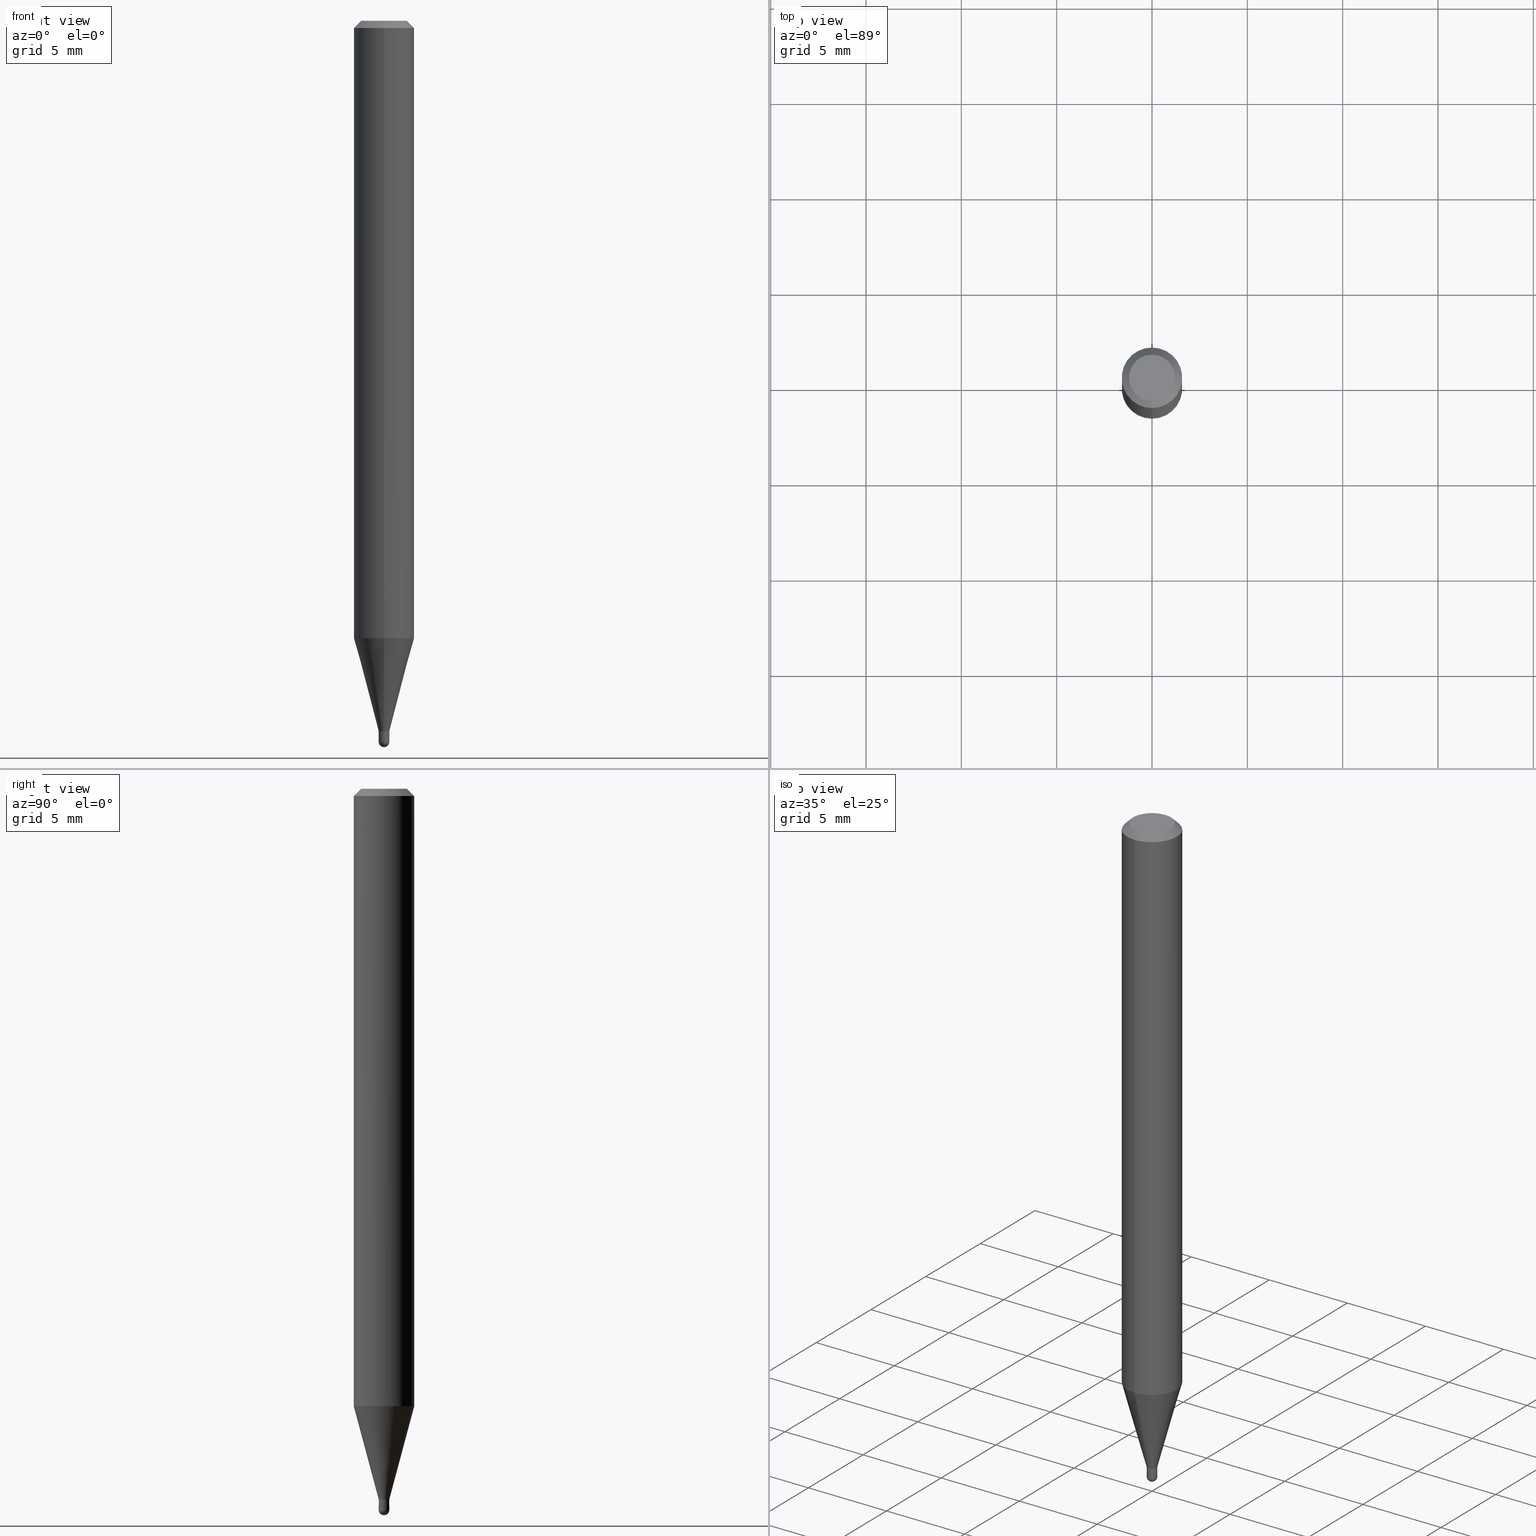
[diagram: canonical four-view strip — front | top / right | iso, engineering-drawing reading convention]
A machine part, canonical four-view strip (front | top / right | iso — engineering-drawing reading convention). The complete STEP part file that produces these views, byte-faithful:
ISO-10303-21;
HEADER;
FILE_DESCRIPTION (( 'STEP AP203' ),
    '1' );
FILE_NAME ('01379.STEP',
    '2024-03-07T20:07:36',
    ( '' ),
    ( '' ),
    'SwSTEP 2.0',
    'SolidWorks 2023',
    '' );
FILE_SCHEMA (( 'CONFIG_CONTROL_DESIGN' ));
ENDSEC;

DATA;
#1 = CONICAL_SURFACE ( 'NONE', #4, 0.06250000000000000000, 0.7853981633974483900 ) ;
#2 = FACE_OUTER_BOUND ( 'NONE', #185, .T. ) ;
#3 = EDGE_CURVE ( 'NONE', #427, #378, #159, .T. ) ;
#4 = AXIS2_PLACEMENT_3D ( 'NONE', #332, #488, #93 ) ;
#5 = ORIENTED_EDGE ( 'NONE', *, *, #351, .T. ) ;
#6 = ORIENTED_EDGE ( 'NONE', *, *, #384, .T. ) ;
#7 = CARTESIAN_POINT ( 'NONE',  ( 2.166525261472997960E-46, -3.093258338036396321E-32, -8.859394581085281817E-18 ) ) ;
#8 = EDGE_CURVE ( 'NONE', #309, #19, #152, .T. ) ;
#9 = VECTOR ( 'NONE', #31, 39.37007874015748143 ) ;
#10 = DIRECTION ( 'NONE',  ( 2.438088387897960049E-29, -3.491481338843145188E-15, -1.000000000000000000 ) ) ;
#11 = ORIENTED_EDGE ( 'NONE', *, *, #350, .T. ) ;
#12 = CARTESIAN_POINT ( 'NONE',  ( 4.364351673553919652E-16, 0.06249999999999995143, -0.01500000000000022669 ) ) ;
#13 = ORIENTED_EDGE ( 'NONE', *, *, #473, .T. ) ;
#14 = EDGE_CURVE ( 'NONE', #257, #260, #78, .T. ) ;
#15 = ORIENTED_EDGE ( 'NONE', *, *, #151, .F. ) ;
#16 = VECTOR ( 'NONE', #316, 39.37007874015748143 ) ;
#17 = CIRCLE ( 'NONE', #299, 0.01099999999999999936 ) ;
#18 = APPROVAL_DATE_TIME ( #382, #372 ) ;
#19 = VERTEX_POINT ( 'NONE', #406 ) ;
#20 = DIRECTION ( 'NONE',  ( -6.982962677686265922E-15, -1.000000000000000000, 3.491500812753583960E-15 ) ) ;
#21 = ORIENTED_EDGE ( 'NONE', *, *, #350, .F. ) ;
#22 =( GEOMETRIC_REPRESENTATION_CONTEXT ( 3 ) GLOBAL_UNCERTAINTY_ASSIGNED_CONTEXT ( ( #61 ) ) GLOBAL_UNIT_ASSIGNED_CONTEXT ( ( #217, #171, #301 ) ) REPRESENTATION_CONTEXT ( 'NONE', 'WORKASPACE' ) );
#23 = CARTESIAN_POINT ( 'NONE',  ( 3.641303052409669428E-29, -5.198815713537445098E-15, -1.489000000000000323 ) ) ;
#24 = VECTOR ( 'NONE', #484, 39.37007874015748854 ) ;
#25 = ORIENTED_EDGE ( 'NONE', *, *, #218, .F. ) ;
#26 = DIRECTION ( 'NONE',  ( -2.445455207626158790E-29, 3.491500812753583960E-15, 1.000000000000000000 ) ) ;
#27 = VERTEX_POINT ( 'NONE', #206 ) ;
#28 = ADVANCED_FACE ( 'NONE', ( #480 ), #313, .T. ) ;
#29 = CARTESIAN_POINT ( 'NONE',  ( 3.840629472727447874E-16, 0.04749999999999999362, -1.747056831868805136E-16 ) ) ;
#30 = CC_DESIGN_PERSON_AND_ORGANIZATION_ASSIGNMENT ( #146, #501, ( #103 ) ) ;
#31 = DIRECTION ( 'NONE',  ( -2.445455207626158790E-29, 3.491500812753583566E-15, 1.000000000000000000 ) ) ;
#32 = APPROVAL ( #76, 'UNSPECIFIED' ) ;
#33 = ORIENTED_EDGE ( 'NONE', *, *, #426, .F. ) ;
#34 = LINE ( 'NONE', #358, #339 ) ;
#35 = CARTESIAN_POINT ( 'NONE',  ( -7.681258945451277835E-17, -0.01100000000000508037, -1.466500000000000359 ) ) ;
#36 = FACE_OUTER_BOUND ( 'NONE', #478, .T. ) ;
#37 = VECTOR ( 'NONE', #242, 39.37007874015748143 ) ;
#38 = EDGE_LOOP ( 'NONE', ( #98, #182 ) ) ;
#39 = CYLINDRICAL_SURFACE ( 'NONE', #97, 0.01099999999999992477 ) ;
#40 = EDGE_CURVE ( 'NONE', #452, #396, #86, .T. ) ;
#41 = DIRECTION ( 'NONE',  ( 2.445455207626158510E-29, -3.491500812753583566E-15, -1.000000000000000000 ) ) ;
#42 = DIRECTION ( 'NONE',  ( -6.982962677686265922E-15, -1.000000000000000000, 3.491500812753583960E-15 ) ) ;
#43 = CARTESIAN_POINT ( 'NONE',  ( 0.01099999999999999936, -7.681258945454891804E-17, 5.363794453375529652E-31 ) ) ;
#44 = ORIENTED_EDGE ( 'NONE', *, *, #3, .F. ) ;
#45 = CARTESIAN_POINT ( 'NONE',  ( 7.815970093364607092E-17, 0.01099999999999476744, -1.466500000000000359 ) ) ;
#46 = CIRCLE ( 'NONE', #429, 0.06250000000000000000 ) ;
#47 = CARTESIAN_POINT ( 'NONE',  ( 3.587482789587575719E-29, -5.122031692309508450E-15, -1.467000000000000304 ) ) ;
#48 = ADVANCED_FACE ( 'NONE', ( #80 ), #463, .T. ) ;
#49 = EDGE_LOOP ( 'NONE', ( #11, #439, #53, #102 ) ) ;
#50 = ORIENTED_EDGE ( 'NONE', *, *, #487, .F. ) ;
#51 = DIRECTION ( 'NONE',  ( 0.000000000000000000, 0.000000000000000000, 1.000000000000000000 ) ) ;
#52 = CARTESIAN_POINT ( 'NONE',  ( 3.587502738673595692E-29, -5.122003124082895786E-15, -1.467000000000000304 ) ) ;
#53 = ORIENTED_EDGE ( 'NONE', *, *, #473, .F. ) ;
#54 = CIRCLE ( 'NONE', #485, 0.04749999999999999362 ) ;
#55 = DIRECTION ( 'NONE',  ( -6.982962677686266711E-15, -1.000000000000000000, 3.491500812753583960E-15 ) ) ;
#56 = AXIS2_PLACEMENT_3D ( 'NONE', #510, #158, #117 ) ;
#57 = ORIENTED_EDGE ( 'NONE', *, *, #72, .T. ) ;
#58 = CC_DESIGN_PERSON_AND_ORGANIZATION_ASSIGNMENT ( #405, #155, ( #436 ) ) ;
#59 = ORIENTED_EDGE ( 'NONE', *, *, #203, .T. ) ;
#60 = LENGTH_MEASURE_WITH_UNIT ( LENGTH_MEASURE( 0.02539999999999999897 ), #294 );
#61 = UNCERTAINTY_MEASURE_WITH_UNIT (LENGTH_MEASURE( 1.000000000000000082E-05 ), #217, 'distance_accuracy_value', 'NONE');
#62 = DIRECTION ( 'NONE',  ( -2.445468806185136597E-29, 3.491481338843145583E-15, 1.000000000000000000 ) ) ;
#63 = DIRECTION ( 'NONE',  ( -2.445455207626158790E-29, 3.491500812753583960E-15, 1.000000000000000000 ) ) ;
#64 = PERSON_AND_ORGANIZATION_ROLE ( 'creator' ) ;
#65 = ORIENTED_EDGE ( 'NONE', *, *, #163, .T. ) ;
#66 = AXIS2_PLACEMENT_3D ( 'NONE', #214, #476, #368 ) ;
#67 = DIRECTION ( 'NONE',  ( -2.445455207626158790E-29, 3.491500812753583566E-15, 1.000000000000000000 ) ) ;
#68 = EDGE_CURVE ( 'NONE', #317, #260, #359, .T. ) ;
#69 = CIRCLE ( 'NONE', #180, 0.01099999999999992477 ) ;
#70 = VERTEX_POINT ( 'NONE', #404 ) ;
#71 = CARTESIAN_POINT ( 'NONE',  ( 3.117464790839112548E-29, -4.450963083274512992E-15, -1.274799383410209153 ) ) ;
#72 = EDGE_CURVE ( 'NONE', #197, #27, #248, .T. ) ;
#73 = DIRECTION ( 'NONE',  ( -2.445455207626158790E-29, 3.491500812753583960E-15, 1.000000000000000000 ) ) ;
#74 = CARTESIAN_POINT ( 'NONE',  ( 3.587482789587576279E-29, -5.122031692309510028E-15, -1.467000000000000526 ) ) ;
#75 = DIRECTION ( 'NONE',  ( -6.982962677686265922E-15, -1.000000000000000000, 0.000000000000000000 ) ) ;
#76 = APPROVAL_STATUS ( 'not_yet_approved' ) ;
#77 = VECTOR ( 'NONE', #278, 39.37007874015748143 ) ;
#78 = LINE ( 'NONE', #470, #16 ) ;
#79 = COORDINATED_UNIVERSAL_TIME_OFFSET ( 5, 0, .BEHIND. ) ;
#80 = FACE_OUTER_BOUND ( 'NONE', #428, .T. ) ;
#81 = DIRECTION ( 'NONE',  ( -2.445455207626158790E-29, 3.491500812753583960E-15, 1.000000000000000000 ) ) ;
#82 = ADVANCED_FACE ( 'NONE', ( #209 ), #120, .F. ) ;
#83 = AXIS2_PLACEMENT_3D ( 'NONE', #466, #441, #227 ) ;
#84 = DIRECTION ( 'NONE',  ( -6.982962677686265922E-15, -1.000000000000000000, 3.491500812753583566E-15 ) ) ;
#85 = CARTESIAN_POINT ( 'NONE',  ( 3.641303052409669428E-29, -5.198815713537445098E-15, -1.489000000000000323 ) ) ;
#86 = CIRCLE ( 'NONE', #293, 0.01100000000000011906 ) ;
#87 = DIRECTION ( 'NONE',  ( -6.982962677686265922E-15, -1.000000000000000000, 3.483106191921935554E-15 ) ) ;
#88 = MANIFOLD_SOLID_BREP ( 'Body-Move/Copy2[1]', #179 ) ;
#89 = ORIENTED_EDGE ( 'NONE', *, *, #14, .T. ) ;
#90 = PERSON_AND_ORGANIZATION ( #256, #291 ) ;
#91 = FACE_OUTER_BOUND ( 'NONE', #338, .T. ) ;
#92 = EDGE_LOOP ( 'NONE', ( #383, #95 ) ) ;
#93 = DIRECTION ( 'NONE',  ( 6.982962677686265922E-15, 1.000000000000000000, -3.483106191921935554E-15 ) ) ;
#94 = AXIS2_PLACEMENT_3D ( 'NONE', #312, #268, #20 ) ;
#95 = ORIENTED_EDGE ( 'NONE', *, *, #178, .F. ) ;
#96 = APPLICATION_CONTEXT ( 'configuration controlled 3d designs of mechanical parts and assemblies' ) ;
#97 = AXIS2_PLACEMENT_3D ( 'NONE', #407, #99, #425 ) ;
#98 = ORIENTED_EDGE ( 'NONE', *, *, #495, .T. ) ;
#99 = DIRECTION ( 'NONE',  ( -2.445455207626158790E-29, 3.491500812753583960E-15, 1.000000000000000000 ) ) ;
#100 = DATE_AND_TIME ( #467, #300 ) ;
#101 = EDGE_CURVE ( 'NONE', #131, #260, #154, .T. ) ;
#102 = ORIENTED_EDGE ( 'NONE', *, *, #8, .F. ) ;
#103 = SECURITY_CLASSIFICATION ( '', '', #141 ) ;
#104 = AXIS2_PLACEMENT_3D ( 'NONE', #468, #401, #226 ) ;
#105 = COORDINATED_UNIVERSAL_TIME_OFFSET ( 5, 0, .BEHIND. ) ;
#106 = ORIENTED_EDGE ( 'NONE', *, *, #210, .T. ) ;
#107 = CIRCLE ( 'NONE', #83, 0.01099999999999999936 ) ;
#108 = ADVANCED_FACE ( 'NONE', ( #2 ), #366, .T. ) ;
#109 = DIRECTION ( 'NONE',  ( 2.445455207626158790E-29, -3.491500812753583960E-15, -1.000000000000000000 ) ) ;
#110 = AXIS2_PLACEMENT_3D ( 'NONE', #344, #235, #167 ) ;
#111 = CARTESIAN_POINT ( 'NONE',  ( 3.587482789587575719E-29, -5.122031692309508450E-15, -1.467000000000000304 ) ) ;
#112 = ORIENTED_EDGE ( 'NONE', *, *, #454, .F. ) ;
#113 = CARTESIAN_POINT ( 'NONE',  ( 3.587482789587575719E-29, -5.122031692309508450E-15, -1.467000000000000304 ) ) ;
#114 = CARTESIAN_POINT ( 'NONE',  ( -7.681258945454840035E-17, -0.01099999999999992477, 3.840650894028915515E-17 ) ) ;
#115 = CARTESIAN_POINT ( 'NONE',  ( 0.000000000000000000, 0.000000000000000000, 0.000000000000000000 ) ) ;
#116 = EDGE_CURVE ( 'NONE', #197, #131, #69, .T. ) ;
#117 = DIRECTION ( 'NONE',  ( -6.982962677686265922E-15, -1.000000000000000000, 0.000000000000000000 ) ) ;
#118 = CC_DESIGN_SECURITY_CLASSIFICATION ( #103, ( #244 ) ) ;
#119 = CLOSED_SHELL ( 'NONE', ( #437, #48, #292, #324, #236, #451, #135, #250, #82, #129, #419, #286 ) ) ;
#120 = PLANE ( 'NONE',  #306 ) ;
#121 = AXIS2_PLACEMENT_3D ( 'NONE', #416, #10, #172 ) ;
#122 = DIRECTION ( 'NONE',  ( -2.445455207626158790E-29, 3.491500812753583960E-15, 1.000000000000000000 ) ) ;
#123 = DIRECTION ( 'NONE',  ( -2.445455207626158790E-29, 3.491500812753583960E-15, 1.000000000000000000 ) ) ;
#124 = CARTESIAN_POINT ( 'NONE',  ( 3.587482789587576279E-29, -5.122031692309510028E-15, -1.467000000000000526 ) ) ;
#125 = DIRECTION ( 'NONE',  ( -2.445455207626158790E-29, 3.491500812753583960E-15, 1.000000000000000000 ) ) ;
#126 = FACE_OUTER_BOUND ( 'NONE', #92, .T. ) ;
#127 = ORIENTED_EDGE ( 'NONE', *, *, #266, .T. ) ;
#128 = EDGE_CURVE ( 'NONE', #427, #396, #421, .T. ) ;
#129 = ADVANCED_FACE ( 'NONE', ( #126 ), #213, .F. ) ;
#130 = CIRCLE ( 'NONE', #453, 0.06250000000000000000 ) ;
#131 = VERTEX_POINT ( 'NONE', #500 ) ;
#132 = DIRECTION ( 'NONE',  ( 1.000000000000000000, -6.982962677686245411E-15, 0.000000000000000000 ) ) ;
#133 = CC_DESIGN_PERSON_AND_ORGANIZATION_ASSIGNMENT ( #90, #340, ( #457 ) ) ;
#134 = DATE_TIME_ROLE ( 'creation_date' ) ;
#135 = ADVANCED_FACE ( 'NONE', ( #387 ), #191, .T. ) ;
#136 = ORIENTED_EDGE ( 'NONE', *, *, #151, .T. ) ;
#137 = CIRCLE ( 'NONE', #104, 0.04749999999999999362 ) ;
#138 = ORIENTED_EDGE ( 'NONE', *, *, #305, .F. ) ;
#139 = CONICAL_SURFACE ( 'NONE', #502, 0.01099999999999992477, 0.2617993877991575125 ) ;
#140 = DIRECTION ( 'NONE',  ( -6.982962677686265922E-15, -1.000000000000000000, 0.000000000000000000 ) ) ;
#141 = SECURITY_CLASSIFICATION_LEVEL ( 'unclassified' ) ;
#142 = VERTEX_POINT ( 'NONE', #29 ) ;
#143 = VECTOR ( 'NONE', #335, 39.37007874015748143 ) ;
#144 = AXIS2_PLACEMENT_3D ( 'NONE', #322, #161, #482 ) ;
#145 = CARTESIAN_POINT ( 'NONE',  ( 3.587482789587576279E-29, -5.122031692309510028E-15, -1.467000000000000526 ) ) ;
#146 = PERSON_AND_ORGANIZATION ( #256, #291 ) ;
#147 = CARTESIAN_POINT ( 'NONE',  ( 3.668182811439240340E-31, -5.237251219130378726E-17, -0.01500000000000000812 ) ) ;
#148 = ADVANCED_BREP_SHAPE_REPRESENTATION ( '01379', ( #88, #276, #320 ), #22 ) ;
#149 = CC_DESIGN_DATE_AND_TIME_ASSIGNMENT ( #100, #262, ( #103 ) ) ;
#150 = EDGE_LOOP ( 'NONE', ( #270, #173, #261, #44, #496 ) ) ;
#151 = EDGE_CURVE ( 'NONE', #197, #317, #433, .T. ) ;
#152 = LINE ( 'NONE', #506, #410 ) ;
#153 = DIRECTION ( 'NONE',  ( 5.024295867788190974E-15, 0.7071067811865681119, 0.7071067811865270336 ) ) ;
#154 = LINE ( 'NONE', #114, #77 ) ;
#155 = PERSON_AND_ORGANIZATION_ROLE ( 'creator' ) ;
#156 = DIRECTION ( 'NONE',  ( -6.982962677686265922E-15, -1.000000000000000000, 0.000000000000000000 ) ) ;
#157 = ORIENTED_EDGE ( 'NONE', *, *, #72, .F. ) ;
#158 = DIRECTION ( 'NONE',  ( 1.000000000000000000, -6.982962677686265922E-15, 4.883557194083112901E-29 ) ) ;
#159 = LINE ( 'NONE', #43, #37 ) ;
#160 = AXIS2_PLACEMENT_3D ( 'NONE', #195, #507, #360 ) ;
#161 = DIRECTION ( 'NONE',  ( 1.000000000000000000, -6.982962677686265922E-15, 4.883557194083112901E-29 ) ) ;
#162 = CIRCLE ( 'NONE', #160, 0.01099999999999992477 ) ;
#163 = EDGE_CURVE ( 'NONE', #131, #197, #347, .T. ) ;
#164 = DIRECTION ( 'NONE',  ( 1.000000000000000000, -6.982962677686245411E-15, 0.000000000000000000 ) ) ;
#165 = EDGE_CURVE ( 'NONE', #289, #427, #17, .T. ) ;
#166 = ORIENTED_EDGE ( 'NONE', *, *, #487, .T. ) ;
#167 = DIRECTION ( 'NONE',  ( 1.000000000000000000, -6.982962677686245411E-15, 0.000000000000000000 ) ) ;
#168 = AXIS2_PLACEMENT_3D ( 'NONE', #115, #281, #361 ) ;
#169 = ORIENTED_EDGE ( 'NONE', *, *, #116, .T. ) ;
#170 = AXIS2_PLACEMENT_3D ( 'NONE', #147, #109, #440 ) ;
#171 =( NAMED_UNIT ( * ) PLANE_ANGLE_UNIT ( ) SI_UNIT ( $, .RADIAN. ) );
#172 = DIRECTION ( 'NONE',  ( -1.000000000000000000, 6.982962677686265922E-15, -4.876176775795935793E-29 ) ) ;
#173 = ORIENTED_EDGE ( 'NONE', *, *, #426, .T. ) ;
#174 = APPLICATION_CONTEXT ( 'configuration controlled 3d designs of mechanical parts and assemblies' ) ;
#175 = ORIENTED_EDGE ( 'NONE', *, *, #352, .T. ) ;
#176 = CALENDAR_DATE ( 2024, 7, 3 ) ;
#177 = CONICAL_SURFACE ( 'NONE', #337, 0.01099999999999992477, 0.2617993877991575125 ) ;
#178 = EDGE_CURVE ( 'NONE', #395, #257, #388, .T. ) ;
#179 = CLOSED_SHELL ( 'NONE', ( #192, #108, #412, #370, #28 ) ) ;
#180 = AXIS2_PLACEMENT_3D ( 'NONE', #124, #408, #251 ) ;
#181 = PERSON_AND_ORGANIZATION ( #256, #291 ) ;
#182 = ORIENTED_EDGE ( 'NONE', *, *, #241, .T. ) ;
#183 = PRODUCT_RELATED_PRODUCT_CATEGORY ( 'detail', '', ( #457 ) ) ;
#184 = PERSON_AND_ORGANIZATION ( #256, #291 ) ;
#185 = EDGE_LOOP ( 'NONE', ( #295, #423, #271, #385 ) ) ;
#186 = CARTESIAN_POINT ( 'NONE',  ( -7.332110811566990680E-17, -0.01050000000000512156, -1.467000000000000304 ) ) ;
#187 = CARTESIAN_POINT ( 'NONE',  ( 0.000000000000000000, 0.000000000000000000, 0.000000000000000000 ) ) ;
#188 = EDGE_LOOP ( 'NONE', ( #33, #175, #455, #459, #231 ) ) ;
#189 = AXIS2_PLACEMENT_3D ( 'NONE', #474, #81, #75 ) ;
#190 = AXIS2_PLACEMENT_3D ( 'NONE', #323, #381, #84 ) ;
#191 = CYLINDRICAL_SURFACE ( 'NONE', #94, 0.06250000000000000000 ) ;
#192 = ADVANCED_FACE ( 'NONE', ( #393 ), #465, .T. ) ;
#193 = ORIENTED_EDGE ( 'NONE', *, *, #241, .F. ) ;
#194 = APPLICATION_PROTOCOL_DEFINITION ( 'international standard', 'config_control_design', 1994, #174 ) ;
#195 = CARTESIAN_POINT ( 'NONE',  ( 3.586260061983762993E-29, -5.120285941903131828E-15, -1.466500000000000359 ) ) ;
#196 = CARTESIAN_POINT ( 'NONE',  ( 0.01099999999999999936, -5.237222008264718177E-15, -1.489000000000000323 ) ) ;
#197 = VERTEX_POINT ( 'NONE', #443 ) ;
#198 = EDGE_LOOP ( 'NONE', ( #112, #59, #415, #138 ) ) ;
#199 = CARTESIAN_POINT ( 'NONE',  ( 4.440892098500625669E-16, 0.06250000000000000000, -2.182188007970989975E-16 ) ) ;
#200 = FACE_OUTER_BOUND ( 'NONE', #223, .T. ) ;
#201 = CARTESIAN_POINT ( 'NONE',  ( 7.815970093364634209E-17, 0.01099999999999480213, -1.467000000000000526 ) ) ;
#202 = CALENDAR_DATE ( 2024, 7, 3 ) ;
#203 = EDGE_CURVE ( 'NONE', #27, #309, #328, .T. ) ;
#204 = DIRECTION ( 'NONE',  ( 1.000000000000000000, -6.982962677686265922E-15, 4.876176775795936353E-29 ) ) ;
#205 = CIRCLE ( 'NONE', #110, 0.01099999999999999936 ) ;
#206 = CARTESIAN_POINT ( 'NONE',  ( 4.440892098500935790E-16, 0.06249999999999553135, -1.274799383410209597 ) ) ;
#207 = FACE_OUTER_BOUND ( 'NONE', #237, .T. ) ;
#208 = LINE ( 'NONE', #199, #9 ) ;
#209 = FACE_OUTER_BOUND ( 'NONE', #38, .T. ) ;
#210 = EDGE_CURVE ( 'NONE', #260, #317, #162, .T. ) ;
#211 = DIRECTION ( 'NONE',  ( 6.982962677686265922E-15, 1.000000000000000000, -3.491500812753583566E-15 ) ) ;
#212 = AXIS2_PLACEMENT_3D ( 'NONE', #319, #122, #42 ) ;
#213 = PLANE ( 'NONE',  #190 ) ;
#214 = CARTESIAN_POINT ( 'NONE',  ( 3.641303052409669428E-29, -5.198815713537445098E-15, -1.489000000000000323 ) ) ;
#215 = ORIENTED_EDGE ( 'NONE', *, *, #14, .F. ) ;
#216 = DIMENSIONAL_EXPONENTS ( 1.000000000000000000, 0.000000000000000000, 0.000000000000000000, 0.000000000000000000, 0.000000000000000000, 0.000000000000000000, 0.000000000000000000 ) ;
#217 =( CONVERSION_BASED_UNIT ( 'INCH', #60 ) LENGTH_UNIT ( ) NAMED_UNIT ( #216 ) );
#218 = EDGE_CURVE ( 'NONE', #395, #317, #273, .T. ) ;
#219 = DIRECTION ( 'NONE',  ( -2.445468806185136597E-29, 3.491481338843145583E-15, 1.000000000000000000 ) ) ;
#220 = LOCAL_TIME ( 15, 7, 36.00000000000000000, #105 ) ;
#221 = ORIENTED_EDGE ( 'NONE', *, *, #68, .F. ) ;
#222 = AXIS2_PLACEMENT_3D ( 'NONE', #113, #394, #156 ) ;
#223 = EDGE_LOOP ( 'NONE', ( #157, #169, #330, #238 ) ) ;
#224 = ORIENTED_EDGE ( 'NONE', *, *, #116, .F. ) ;
#225 = APPROVAL_STATUS ( 'not_yet_approved' ) ;
#226 = DIRECTION ( 'NONE',  ( -6.982962677686266711E-15, -1.000000000000000000, 3.491500812753583960E-15 ) ) ;
#227 = DIRECTION ( 'NONE',  ( 1.000000000000000000, -6.982962677686245411E-15, 0.000000000000000000 ) ) ;
#228 = ORIENTED_EDGE ( 'NONE', *, *, #218, .T. ) ;
#229 = DIRECTION ( 'NONE',  ( -6.982962677686265922E-15, -1.000000000000000000, 0.000000000000000000 ) ) ;
#230 = PERSON_AND_ORGANIZATION ( #256, #291 ) ;
#231 = ORIENTED_EDGE ( 'NONE', *, *, #432, .F. ) ;
#232 = AXIS2_PLACEMENT_3D ( 'NONE', #47, #123, #287 ) ;
#233 = CONICAL_SURFACE ( 'NONE', #170, 0.06250000000000000000, 0.7853981633974483900 ) ;
#234 = DIRECTION ( 'NONE',  ( -2.445455207626158790E-29, 3.491500812753583960E-15, 1.000000000000000000 ) ) ;
#235 = DIRECTION ( 'NONE',  ( -2.445468806185136597E-29, 3.491481338843145583E-15, 1.000000000000000000 ) ) ;
#236 = ADVANCED_FACE ( 'NONE', ( #430 ), #139, .T. ) ;
#237 = EDGE_LOOP ( 'NONE', ( #252, #127, #357, #255 ) ) ;
#238 = ORIENTED_EDGE ( 'NONE', *, *, #203, .F. ) ;
#239 = DIRECTION ( 'NONE',  ( -6.982962677686265922E-15, -1.000000000000000000, 0.000000000000000000 ) ) ;
#240 = CARTESIAN_POINT ( 'NONE',  ( 3.587482789587576279E-29, -5.122031692309510028E-15, -1.467000000000000526 ) ) ;
#241 = EDGE_CURVE ( 'NONE', #414, #142, #137, .T. ) ;
#242 = DIRECTION ( 'NONE',  ( -2.445468806185136877E-29, 3.491481338843145188E-15, 1.000000000000000000 ) ) ;
#243 = CALENDAR_DATE ( 2024, 7, 3 ) ;
#244 = PRODUCT_DEFINITION_FORMATION_WITH_SPECIFIED_SOURCE ( 'ANY', '', #457, .NOT_KNOWN. ) ;
#245 = AXIS2_PLACEMENT_3D ( 'NONE', #111, #73, #239 ) ;
#246 = AXIS2_PLACEMENT_3D ( 'NONE', #462, #304, #310 ) ;
#247 = CARTESIAN_POINT ( 'NONE',  ( 3.640362369491571484E-29, -5.200162825016506087E-15, -1.489000000000000101 ) ) ;
#248 = LINE ( 'NONE', #201, #420 ) ;
#249 = CC_DESIGN_PERSON_AND_ORGANIZATION_ASSIGNMENT ( #230, #390, ( #244 ) ) ;
#250 = ADVANCED_FACE ( 'NONE', ( #503 ), #233, .T. ) ;
#251 = DIRECTION ( 'NONE',  ( -6.982962677686265922E-15, -1.000000000000000000, 0.000000000000000000 ) ) ;
#252 = ORIENTED_EDGE ( 'NONE', *, *, #40, .F. ) ;
#253 = CARTESIAN_POINT ( 'NONE',  ( 3.668182811439240340E-31, -5.237251219130378726E-17, -0.01500000000000000812 ) ) ;
#254 = AXIS2_PLACEMENT_3D ( 'NONE', #74, #472, #140 ) ;
#255 = ORIENTED_EDGE ( 'NONE', *, *, #342, .F. ) ;
#256 = PERSON ( 'UNSPECIFIED', 'UNSPECIFIED', 'UNSPECIFIED', ('UNSPECIFIED'), ('UNSPECIFIED'), ('UNSPECIFIED') ) ;
#257 = VERTEX_POINT ( 'NONE', #186 ) ;
#258 = CARTESIAN_POINT ( 'NONE',  ( 0.000000000000000000, 0.000000000000000000, 0.000000000000000000 ) ) ;
#259 = PLANE ( 'NONE',  #121 ) ;
#260 = VERTEX_POINT ( 'NONE', #35 ) ;
#261 = ORIENTED_EDGE ( 'NONE', *, *, #384, .F. ) ;
#262 = DATE_TIME_ROLE ( 'classification_date' ) ;
#263 = APPROVAL_PERSON_ORGANIZATION ( #181, #461, #269 ) ;
#264 = DIRECTION ( 'NONE',  ( 1.000000000000000000, -6.982962677686245411E-15, 0.000000000000000000 ) ) ;
#265 = CALENDAR_DATE ( 2024, 7, 3 ) ;
#266 = EDGE_CURVE ( 'NONE', #452, #289, #464, .T. ) ;
#267 = CARTESIAN_POINT ( 'NONE',  ( -7.681258945451251950E-17, -0.01100000000000504567, -1.467000000000000526 ) ) ;
#268 = DIRECTION ( 'NONE',  ( -2.445455207626158790E-29, 3.491500812753583960E-15, 1.000000000000000000 ) ) ;
#269 = APPROVAL_ROLE ( '' ) ;
#270 = ORIENTED_EDGE ( 'NONE', *, *, #342, .T. ) ;
#271 = ORIENTED_EDGE ( 'NONE', *, *, #128, .F. ) ;
#272 = CIRCLE ( 'NONE', #66, 0.01099999999999999936 ) ;
#273 = LINE ( 'NONE', #505, #481 ) ;
#274 = DESIGN_CONTEXT ( 'detailed design', #174, 'design' ) ;
#275 = DIRECTION ( 'NONE',  ( -2.445468806185136597E-29, 3.491481338843145583E-15, 1.000000000000000000 ) ) ;
#276 = MANIFOLD_SOLID_BREP ( 'Body-Move/Copy2[2]', #119 ) ;
#277 = CC_DESIGN_PERSON_AND_ORGANIZATION_ASSIGNMENT ( #434, #64, ( #244 ) ) ;
#278 = DIRECTION ( 'NONE',  ( -2.445455207626158790E-29, 3.491500812753583566E-15, 1.000000000000000000 ) ) ;
#279 = DIRECTION ( 'NONE',  ( -4.851104656540964275E-15, -0.7071067811865500152, -0.7071067811865450192 ) ) ;
#280 = CARTESIAN_POINT ( 'NONE',  ( 3.117464790839112548E-29, -4.450963083274512992E-15, -1.274799383410209153 ) ) ;
#281 = DIRECTION ( 'NONE',  ( -2.445468806185136597E-29, 3.491481338843145583E-15, 1.000000000000000000 ) ) ;
#282 = CARTESIAN_POINT ( 'NONE',  ( -4.364351673553605094E-16, -0.06250000000000444089, -1.274799383410208931 ) ) ;
#283 = APPROVAL_PERSON_ORGANIZATION ( #184, #372, #438 ) ;
#284 = AXIS2_PLACEMENT_3D ( 'NONE', #397, #62, #204 ) ;
#285 = PERSON_AND_ORGANIZATION ( #256, #291 ) ;
#286 = ADVANCED_FACE ( 'NONE', ( #479 ), #39, .F. ) ;
#287 = DIRECTION ( 'NONE',  ( -6.982962677686265922E-15, -1.000000000000000000, 0.000000000000000000 ) ) ;
#288 = EDGE_LOOP ( 'NONE', ( #417, #303, #166, #504 ) ) ;
#289 = VERTEX_POINT ( 'NONE', #460 ) ;
#290 = DIRECTION ( 'NONE',  ( -2.445455207626158790E-29, 3.491500812753583960E-15, 1.000000000000000000 ) ) ;
#291 = ORGANIZATION ( 'UNSPECIFIED', 'UNSPECIFIED', '' ) ;
#292 = ADVANCED_FACE ( 'NONE', ( #327 ), #1, .T. ) ;
#293 = AXIS2_PLACEMENT_3D ( 'NONE', #247, #450, #449 ) ;
#294 =( LENGTH_UNIT ( ) NAMED_UNIT ( * ) SI_UNIT ( $, .METRE. ) );
#295 = ORIENTED_EDGE ( 'NONE', *, *, #266, .F. ) ;
#296 = CARTESIAN_POINT ( 'NONE',  ( 7.638334409424636122E-17, 0.01049999999999487801, -1.467000000000000304 ) ) ;
#297 = ORIENTED_EDGE ( 'NONE', *, *, #363, .T. ) ;
#298 = EDGE_CURVE ( 'NONE', #131, #309, #386, .T. ) ;
#299 = AXIS2_PLACEMENT_3D ( 'NONE', #23, #275, #264 ) ;
#300 = LOCAL_TIME ( 15, 7, 36.00000000000000000, #349 ) ;
#301 =( NAMED_UNIT ( * ) SI_UNIT ( $, .STERADIAN. ) SOLID_ANGLE_UNIT ( ) );
#302 = ORIENTED_EDGE ( 'NONE', *, *, #298, .F. ) ;
#303 = ORIENTED_EDGE ( 'NONE', *, *, #495, .F. ) ;
#304 = DIRECTION ( 'NONE',  ( -1.000000000000000000, 6.982962677686265922E-15, -4.883557194083112340E-29 ) ) ;
#305 = EDGE_CURVE ( 'NONE', #70, #19, #458, .T. ) ;
#306 = AXIS2_PLACEMENT_3D ( 'NONE', #364, #41, #211 ) ;
#307 = AXIS2_PLACEMENT_3D ( 'NONE', #52, #219, #132 ) ;
#308 = DIRECTION ( 'NONE',  ( -6.982962677686265922E-15, -1.000000000000000000, 0.000000000000000000 ) ) ;
#309 = VERTEX_POINT ( 'NONE', #282 ) ;
#310 = DIRECTION ( 'NONE',  ( -6.982962677686265922E-15, -1.000000000000000000, 0.000000000000000000 ) ) ;
#311 = LINE ( 'NONE', #402, #456 ) ;
#312 = CARTESIAN_POINT ( 'NONE',  ( 0.000000000000000000, 0.000000000000000000, 0.000000000000000000 ) ) ;
#313 = CYLINDRICAL_SURFACE ( 'NONE', #168, 0.01099999999999999936 ) ;
#314 = CARTESIAN_POINT ( 'NONE',  ( 3.587482789587575719E-29, -5.122031692309508450E-15, -1.467000000000000304 ) ) ;
#315 = DATE_AND_TIME ( #202, #491 ) ;
#316 = DIRECTION ( 'NONE',  ( -4.937700262164674260E-15, -0.7071067811865632269, 0.7071067811865319186 ) ) ;
#317 = VERTEX_POINT ( 'NONE', #45 ) ;
#318 = AXIS2_PLACEMENT_3D ( 'NONE', #85, #483, #164 ) ;
#319 = CARTESIAN_POINT ( 'NONE',  ( 0.000000000000000000, 0.000000000000000000, 0.000000000000000000 ) ) ;
#320 = AXIS2_PLACEMENT_3D ( 'NONE', #258, #51, #331 ) ;
#321 = AXIS2_PLACEMENT_3D ( 'NONE', #253, #447, #400 ) ;
#322 = CARTESIAN_POINT ( 'NONE',  ( 3.640362369491571484E-29, -5.200162825016506087E-15, -1.489000000000000101 ) ) ;
#323 = CARTESIAN_POINT ( 'NONE',  ( 3.587482789587575719E-29, -5.122031692309508450E-15, -1.467000000000000304 ) ) ;
#324 = ADVANCED_FACE ( 'NONE', ( #409 ), #512, .T. ) ;
#325 = DATE_AND_TIME ( #243, #490 ) ;
#326 = ORIENTED_EDGE ( 'NONE', *, *, #432, .T. ) ;
#327 = FACE_OUTER_BOUND ( 'NONE', #334, .T. ) ;
#328 = CIRCLE ( 'NONE', #369, 0.06250000000000000000 ) ;
#329 = SHAPE_DEFINITION_REPRESENTATION ( #341, #148 ) ;
#330 = ORIENTED_EDGE ( 'NONE', *, *, #298, .T. ) ;
#331 = DIRECTION ( 'NONE',  ( 1.000000000000000000, 0.000000000000000000, 0.000000000000000000 ) ) ;
#332 = CARTESIAN_POINT ( 'NONE',  ( 3.668182811439240340E-31, -5.237251219130378726E-17, -0.01500000000000000812 ) ) ;
#333 = CARTESIAN_POINT ( 'NONE',  ( -3.773273898774340269E-16, -0.04749999999999999362, 1.569868940247099438E-16 ) ) ;
#334 = EDGE_LOOP ( 'NONE', ( #193, #5, #13, #50 ) ) ;
#335 = DIRECTION ( 'NONE',  ( 4.937700262164548042E-15, 0.7071067811865451302, -0.7071067811865499042 ) ) ;
#336 = CC_DESIGN_DATE_AND_TIME_ASSIGNMENT ( #325, #134, ( #436 ) ) ;
#337 = AXIS2_PLACEMENT_3D ( 'NONE', #145, #125, #413 ) ;
#338 = EDGE_LOOP ( 'NONE', ( #6, #326 ) ) ;
#339 = VECTOR ( 'NONE', #279, 39.37007874015748143 ) ;
#340 = PERSON_AND_ORGANIZATION_ROLE ( 'design_owner' ) ;
#341 = PRODUCT_DEFINITION_SHAPE ( 'NONE', 'NONE',  #436 ) ;
#342 = EDGE_CURVE ( 'NONE', #396, #374, #272, .T. ) ;
#343 = APPROVAL_STATUS ( 'not_yet_approved' ) ;
#344 = CARTESIAN_POINT ( 'NONE',  ( 3.641303052409669428E-29, -5.198815713537445098E-15, -1.489000000000000323 ) ) ;
#345 = DIRECTION ( 'NONE',  ( -2.445455207626158790E-29, 3.491500812753583960E-15, 1.000000000000000000 ) ) ;
#346 = LOCAL_TIME ( 15, 7, 36.00000000000000000, #497 ) ;
#347 = CIRCLE ( 'NONE', #254, 0.01099999999999992477 ) ;
#348 = CARTESIAN_POINT ( 'NONE',  ( 7.815970093361046124E-17, 0.01099999999999992477, -3.840650894028915515E-17 ) ) ;
#349 = COORDINATED_UNIVERSAL_TIME_OFFSET ( 5, 0, .BEHIND. ) ;
#350 = EDGE_CURVE ( 'NONE', #309, #27, #46, .T. ) ;
#351 = EDGE_CURVE ( 'NONE', #414, #19, #34, .T. ) ;
#352 = EDGE_CURVE ( 'NONE', #374, #289, #205, .T. ) ;
#353 = DIRECTION ( 'NONE',  ( -6.982962677686265922E-15, -1.000000000000000000, 4.370956789862821150E-15 ) ) ;
#354 = FACE_OUTER_BOUND ( 'NONE', #422, .T. ) ;
#355 = APPROVAL_DATE_TIME ( #315, #32 ) ;
#356 = CC_DESIGN_APPROVAL ( #372, ( #103 ) ) ;
#357 = ORIENTED_EDGE ( 'NONE', *, *, #352, .F. ) ;
#358 = CARTESIAN_POINT ( 'NONE',  ( -4.287811248607203282E-16, -0.06250000000000005551, -0.01499999999999979128 ) ) ;
#359 = CIRCLE ( 'NONE', #189, 0.01099999999999992477 ) ;
#360 = DIRECTION ( 'NONE',  ( -6.982962677686265922E-15, -1.000000000000000000, 0.000000000000000000 ) ) ;
#361 = DIRECTION ( 'NONE',  ( 1.000000000000000000, -6.982962677686265922E-15, 4.876176775795936353E-29 ) ) ;
#362 = SPHERICAL_SURFACE ( 'NONE', #56, 0.01100000000000011906 ) ;
#363 = EDGE_CURVE ( 'NONE', #257, #395, #367, .T. ) ;
#364 = CARTESIAN_POINT ( 'NONE',  ( 3.316907271900976096E-16, 0.04749999999999999362, -1.702759858963378650E-16 ) ) ;
#365 = CARTESIAN_POINT ( 'NONE',  ( 3.666792184900559380E-29, -5.239242675483312815E-15, -1.500000000000000444 ) ) ;
#366 = SPHERICAL_SURFACE ( 'NONE', #144, 0.01100000000000011906 ) ;
#367 = CIRCLE ( 'NONE', #232, 0.01049999999999999892 ) ;
#368 = DIRECTION ( 'NONE',  ( 1.000000000000000000, -6.982962677686245411E-15, 0.000000000000000000 ) ) ;
#369 = AXIS2_PLACEMENT_3D ( 'NONE', #71, #26, #353 ) ;
#370 = ADVANCED_FACE ( 'NONE', ( #207 ), #362, .T. ) ;
#371 = DIRECTION ( 'NONE',  ( -6.982962677686265922E-15, -1.000000000000000000, 4.370956789862821150E-15 ) ) ;
#372 = APPROVAL ( #343, 'UNSPECIFIED' ) ;
#373 = ORIENTED_EDGE ( 'NONE', *, *, #178, .T. ) ;
#374 = VERTEX_POINT ( 'NONE', #486 ) ;
#375 = CARTESIAN_POINT ( 'NONE',  ( 7.815970093364783353E-17, 0.01099999999999485938, -1.489000000000000323 ) ) ;
#376 = AXIS2_PLACEMENT_3D ( 'NONE', #187, #345, #398 ) ;
#377 = CARTESIAN_POINT ( 'NONE',  ( 3.668182811439240340E-31, -5.237251219130378726E-17, -0.01500000000000000812 ) ) ;
#378 = VERTEX_POINT ( 'NONE', #448 ) ;
#379 = ORIENTED_EDGE ( 'NONE', *, *, #101, .F. ) ;
#380 = APPLICATION_PROTOCOL_DEFINITION ( 'international standard', 'config_control_design', 1994, #96 ) ;
#381 = DIRECTION ( 'NONE',  ( -2.445455207626158510E-29, 3.491500812753583566E-15, 1.000000000000000000 ) ) ;
#382 = DATE_AND_TIME ( #176, #346 ) ;
#383 = ORIENTED_EDGE ( 'NONE', *, *, #363, .F. ) ;
#384 = EDGE_CURVE ( 'NONE', #378, #391, #411, .T. ) ;
#385 = ORIENTED_EDGE ( 'NONE', *, *, #165, .F. ) ;
#386 = LINE ( 'NONE', #267, #24 ) ;
#387 = FACE_OUTER_BOUND ( 'NONE', #198, .T. ) ;
#388 = CIRCLE ( 'NONE', #392, 0.01049999999999999892 ) ;
#389 = DIRECTION ( 'NONE',  ( -2.445468806185136877E-29, 3.491481338843145188E-15, 1.000000000000000000 ) ) ;
#390 = PERSON_AND_ORGANIZATION_ROLE ( 'design_supplier' ) ;
#391 = VERTEX_POINT ( 'NONE', #489 ) ;
#392 = AXIS2_PLACEMENT_3D ( 'NONE', #314, #234, #308 ) ;
#393 = FACE_OUTER_BOUND ( 'NONE', #150, .T. ) ;
#394 = DIRECTION ( 'NONE',  ( -2.445455207626158790E-29, 3.491500812753583960E-15, 1.000000000000000000 ) ) ;
#395 = VERTEX_POINT ( 'NONE', #296 ) ;
#396 = VERTEX_POINT ( 'NONE', #375 ) ;
#397 = CARTESIAN_POINT ( 'NONE',  ( 0.000000000000000000, 0.000000000000000000, 0.000000000000000000 ) ) ;
#398 = DIRECTION ( 'NONE',  ( -6.982962677686265922E-15, -1.000000000000000000, 3.491500812753583566E-15 ) ) ;
#399 = APPROVAL_ROLE ( '' ) ;
#400 = DIRECTION ( 'NONE',  ( -6.982962677686265922E-15, -1.000000000000000000, 3.483106191921935554E-15 ) ) ;
#401 = DIRECTION ( 'NONE',  ( -2.445455207626158790E-29, 3.491500812753583960E-15, 1.000000000000000000 ) ) ;
#402 = CARTESIAN_POINT ( 'NONE',  ( -0.01099999999999999936, 7.815970093361101591E-17, -5.410828599280396199E-31 ) ) ;
#403 = ORIENTED_EDGE ( 'NONE', *, *, #210, .F. ) ;
#404 = CARTESIAN_POINT ( 'NONE',  ( 4.440892098500939734E-16, 0.06249999999999995143, -0.01500000000000022669 ) ) ;
#405 = PERSON_AND_ORGANIZATION ( #256, #291 ) ;
#406 = CARTESIAN_POINT ( 'NONE',  ( -4.364351673553912750E-16, -0.06250000000000005551, -0.01499999999999979128 ) ) ;
#407 = CARTESIAN_POINT ( 'NONE',  ( 0.000000000000000000, 0.000000000000000000, 0.000000000000000000 ) ) ;
#408 = DIRECTION ( 'NONE',  ( -2.445455207626158790E-29, 3.491500812753583960E-15, 1.000000000000000000 ) ) ;
#409 = FACE_OUTER_BOUND ( 'NONE', #49, .T. ) ;
#410 = VECTOR ( 'NONE', #442, 39.37007874015748143 ) ;
#411 = CIRCLE ( 'NONE', #307, 0.01099999999999999936 ) ;
#412 = ADVANCED_FACE ( 'NONE', ( #91 ), #259, .F. ) ;
#413 = DIRECTION ( 'NONE',  ( -6.982962677686265922E-15, -1.000000000000000000, 0.000000000000000000 ) ) ;
#414 = VERTEX_POINT ( 'NONE', #333 ) ;
#415 = ORIENTED_EDGE ( 'NONE', *, *, #8, .T. ) ;
#416 = CARTESIAN_POINT ( 'NONE',  ( 7.681258945458479888E-17, 0.01099999999999487672, -1.467000000000000304 ) ) ;
#417 = ORIENTED_EDGE ( 'NONE', *, *, #351, .F. ) ;
#418 = LINE ( 'NONE', #12, #143 ) ;
#419 = ADVANCED_FACE ( 'NONE', ( #354 ), #471, .T. ) ;
#420 = VECTOR ( 'NONE', #508, 39.37007874015748854 ) ;
#421 = CIRCLE ( 'NONE', #318, 0.01099999999999999936 ) ;
#422 = EDGE_LOOP ( 'NONE', ( #25, #373, #89, #221 ) ) ;
#423 = ORIENTED_EDGE ( 'NONE', *, *, #40, .T. ) ;
#424 = MECHANICAL_CONTEXT ( 'NONE', #96, 'mechanical' ) ;
#425 = DIRECTION ( 'NONE',  ( -6.982962677686265922E-15, -1.000000000000000000, 3.491500812753583566E-15 ) ) ;
#426 = EDGE_CURVE ( 'NONE', #374, #391, #311, .T. ) ;
#427 = VERTEX_POINT ( 'NONE', #196 ) ;
#428 = EDGE_LOOP ( 'NONE', ( #297, #228, #403, #215 ) ) ;
#429 = AXIS2_PLACEMENT_3D ( 'NONE', #280, #444, #371 ) ;
#430 = FACE_OUTER_BOUND ( 'NONE', #435, .T. ) ;
#431 = DATE_AND_TIME ( #265, #220 ) ;
#432 = EDGE_CURVE ( 'NONE', #391, #378, #107, .T. ) ;
#433 = LINE ( 'NONE', #348, #492 ) ;
#434 = PERSON_AND_ORGANIZATION ( #256, #291 ) ;
#435 = EDGE_LOOP ( 'NONE', ( #65, #57, #21, #302 ) ) ;
#436 = PRODUCT_DEFINITION ( 'UNKNOWN', '', #244, #274 ) ;
#437 = ADVANCED_FACE ( 'NONE', ( #36 ), #477, .F. ) ;
#438 = APPROVAL_ROLE ( '' ) ;
#439 = ORIENTED_EDGE ( 'NONE', *, *, #454, .T. ) ;
#440 = DIRECTION ( 'NONE',  ( 6.982962677686265922E-15, 1.000000000000000000, -3.483106191921935554E-15 ) ) ;
#441 = DIRECTION ( 'NONE',  ( -2.445468806185136597E-29, 3.491481338843145583E-15, 1.000000000000000000 ) ) ;
#442 = DIRECTION ( 'NONE',  ( -2.445455207626158790E-29, 3.491500812753583566E-15, 1.000000000000000000 ) ) ;
#443 = CARTESIAN_POINT ( 'NONE',  ( 2.611244553918701824E-16, 0.01099999999999480213, -1.467000000000000526 ) ) ;
#444 = DIRECTION ( 'NONE',  ( -2.445455207626158790E-29, 3.491500812753583960E-15, 1.000000000000000000 ) ) ;
#445 = CC_DESIGN_APPROVAL ( #32, ( #436 ) ) ;
#446 = EDGE_LOOP ( 'NONE', ( #15, #498, #509, #106 ) ) ;
#447 = DIRECTION ( 'NONE',  ( -2.445455207626158790E-29, 3.491500812753583960E-15, 1.000000000000000000 ) ) ;
#448 = CARTESIAN_POINT ( 'NONE',  ( 0.01099999999999999936, -5.198815713537444309E-15, -1.467000000000000304 ) ) ;
#449 = DIRECTION ( 'NONE',  ( 7.105427357600999492E-15, 1.000000000000000000, 0.000000000000000000 ) ) ;
#450 = DIRECTION ( 'NONE',  ( 1.000000000000000000, -7.105427357601001070E-15, 4.926315508542082329E-29 ) ) ;
#451 = ADVANCED_FACE ( 'NONE', ( #200 ), #177, .T. ) ;
#452 = VERTEX_POINT ( 'NONE', #365 ) ;
#453 = AXIS2_PLACEMENT_3D ( 'NONE', #377, #290, #87 ) ;
#454 = EDGE_CURVE ( 'NONE', #27, #70, #208, .T. ) ;
#455 = ORIENTED_EDGE ( 'NONE', *, *, #165, .T. ) ;
#456 = VECTOR ( 'NONE', #389, 39.37007874015748143 ) ;
#457 = PRODUCT ( '01379', '01379', '', ( #424 ) ) ;
#458 = CIRCLE ( 'NONE', #321, 0.06250000000000000000 ) ;
#459 = ORIENTED_EDGE ( 'NONE', *, *, #3, .T. ) ;
#460 = CARTESIAN_POINT ( 'NONE',  ( -7.681258945451292626E-17, -0.01100000000000525731, -1.489000000000000323 ) ) ;
#461 = APPROVAL ( #225, 'UNSPECIFIED' ) ;
#462 = CARTESIAN_POINT ( 'NONE',  ( 3.640362369491571484E-29, -5.200162825016506087E-15, -1.489000000000000101 ) ) ;
#463 = CONICAL_SURFACE ( 'NONE', #245, 0.01049999999999999892, 0.7853981633974739252 ) ;
#464 = CIRCLE ( 'NONE', #246, 0.01100000000000011906 ) ;
#465 = CYLINDRICAL_SURFACE ( 'NONE', #284, 0.01099999999999999936 ) ;
#466 = CARTESIAN_POINT ( 'NONE',  ( 3.587502738673595692E-29, -5.122003124082895786E-15, -1.467000000000000304 ) ) ;
#467 = CALENDAR_DATE ( 2024, 7, 3 ) ;
#468 = CARTESIAN_POINT ( 'NONE',  ( 2.166525261472997960E-46, -3.093258338036396321E-32, -8.859394581085281817E-18 ) ) ;
#469 = APPROVAL_PERSON_ORGANIZATION ( #285, #32, #399 ) ;
#470 = CARTESIAN_POINT ( 'NONE',  ( -7.332110811566990680E-17, -0.01050000000000512156, -1.467000000000000304 ) ) ;
#471 = CONICAL_SURFACE ( 'NONE', #222, 0.01049999999999999892, 0.7853981633974739252 ) ;
#472 = DIRECTION ( 'NONE',  ( -2.445455207626158790E-29, 3.491500812753583960E-15, 1.000000000000000000 ) ) ;
#473 = EDGE_CURVE ( 'NONE', #19, #70, #130, .T. ) ;
#474 = CARTESIAN_POINT ( 'NONE',  ( 3.586260061983762993E-29, -5.120285941903131828E-15, -1.466500000000000359 ) ) ;
#475 = COORDINATED_UNIVERSAL_TIME_OFFSET ( 5, 0, .BEHIND. ) ;
#476 = DIRECTION ( 'NONE',  ( -2.445468806185136597E-29, 3.491481338843145583E-15, 1.000000000000000000 ) ) ;
#477 = CYLINDRICAL_SURFACE ( 'NONE', #376, 0.01099999999999992477 ) ;
#478 = EDGE_LOOP ( 'NONE', ( #224, #136, #511, #379 ) ) ;
#479 = FACE_OUTER_BOUND ( 'NONE', #446, .T. ) ;
#480 = FACE_OUTER_BOUND ( 'NONE', #188, .T. ) ;
#481 = VECTOR ( 'NONE', #153, 39.37007874015748143 ) ;
#482 = DIRECTION ( 'NONE',  ( -6.982962677686265922E-15, -1.000000000000000000, 0.000000000000000000 ) ) ;
#483 = DIRECTION ( 'NONE',  ( -2.445468806185136597E-29, 3.491481338843145583E-15, 1.000000000000000000 ) ) ;
#484 = DIRECTION ( 'NONE',  ( -1.807323732225379049E-15, -0.2588190451025252359, 0.9659258262890670910 ) ) ;
#485 = AXIS2_PLACEMENT_3D ( 'NONE', #7, #494, #55 ) ;
#486 = CARTESIAN_POINT ( 'NONE',  ( -0.01099999999999999936, -5.082249717876559352E-15, -1.489000000000000323 ) ) ;
#487 = EDGE_CURVE ( 'NONE', #142, #70, #418, .T. ) ;
#488 = DIRECTION ( 'NONE',  ( 2.445455207626158790E-29, -3.491500812753583960E-15, -1.000000000000000000 ) ) ;
#489 = CARTESIAN_POINT ( 'NONE',  ( -0.01099999999999999936, -5.082249717876559352E-15, -1.467000000000000304 ) ) ;
#490 = LOCAL_TIME ( 15, 7, 36.00000000000000000, #475 ) ;
#491 = LOCAL_TIME ( 15, 7, 36.00000000000000000, #79 ) ;
#492 = VECTOR ( 'NONE', #67, 39.37007874015748143 ) ;
#493 = APPROVAL_DATE_TIME ( #431, #461 ) ;
#494 = DIRECTION ( 'NONE',  ( -2.445455207626158790E-29, 3.491500812753583960E-15, 1.000000000000000000 ) ) ;
#495 = EDGE_CURVE ( 'NONE', #142, #414, #54, .T. ) ;
#496 = ORIENTED_EDGE ( 'NONE', *, *, #128, .T. ) ;
#497 = COORDINATED_UNIVERSAL_TIME_OFFSET ( 5, 0, .BEHIND. ) ;
#498 = ORIENTED_EDGE ( 'NONE', *, *, #163, .F. ) ;
#499 = CC_DESIGN_APPROVAL ( #461, ( #244 ) ) ;
#500 = CARTESIAN_POINT ( 'NONE',  ( -7.681258945451251950E-17, -0.01100000000000504567, -1.467000000000000526 ) ) ;
#501 = PERSON_AND_ORGANIZATION_ROLE ( 'classification_officer' ) ;
#502 = AXIS2_PLACEMENT_3D ( 'NONE', #240, #63, #229 ) ;
#503 = FACE_OUTER_BOUND ( 'NONE', #288, .T. ) ;
#504 = ORIENTED_EDGE ( 'NONE', *, *, #305, .T. ) ;
#505 = CARTESIAN_POINT ( 'NONE',  ( 7.460698725484638034E-17, 0.01049999999999487801, -1.467000000000000304 ) ) ;
#506 = CARTESIAN_POINT ( 'NONE',  ( -4.364351673553916201E-16, -0.06250000000000000000, 2.182188007970989975E-16 ) ) ;
#507 = DIRECTION ( 'NONE',  ( -2.445455207626158790E-29, 3.491500812753583960E-15, 1.000000000000000000 ) ) ;
#508 = DIRECTION ( 'NONE',  ( 1.839019923739649619E-15, 0.2588190451025318972, 0.9659258262890650926 ) ) ;
#509 = ORIENTED_EDGE ( 'NONE', *, *, #101, .T. ) ;
#510 = CARTESIAN_POINT ( 'NONE',  ( 3.640362369491571484E-29, -5.200162825016506087E-15, -1.489000000000000101 ) ) ;
#511 = ORIENTED_EDGE ( 'NONE', *, *, #68, .T. ) ;
#512 = CYLINDRICAL_SURFACE ( 'NONE', #212, 0.06250000000000000000 ) ;
ENDSEC;
END-ISO-10303-21;
